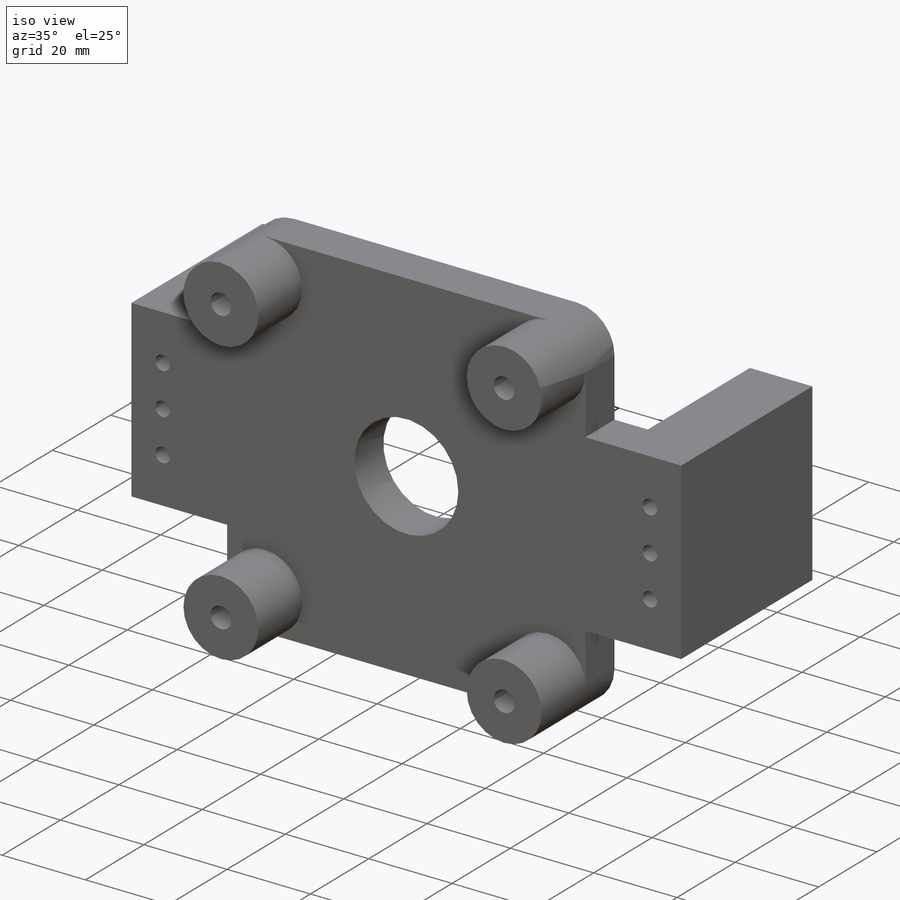
[diagram: iso view]
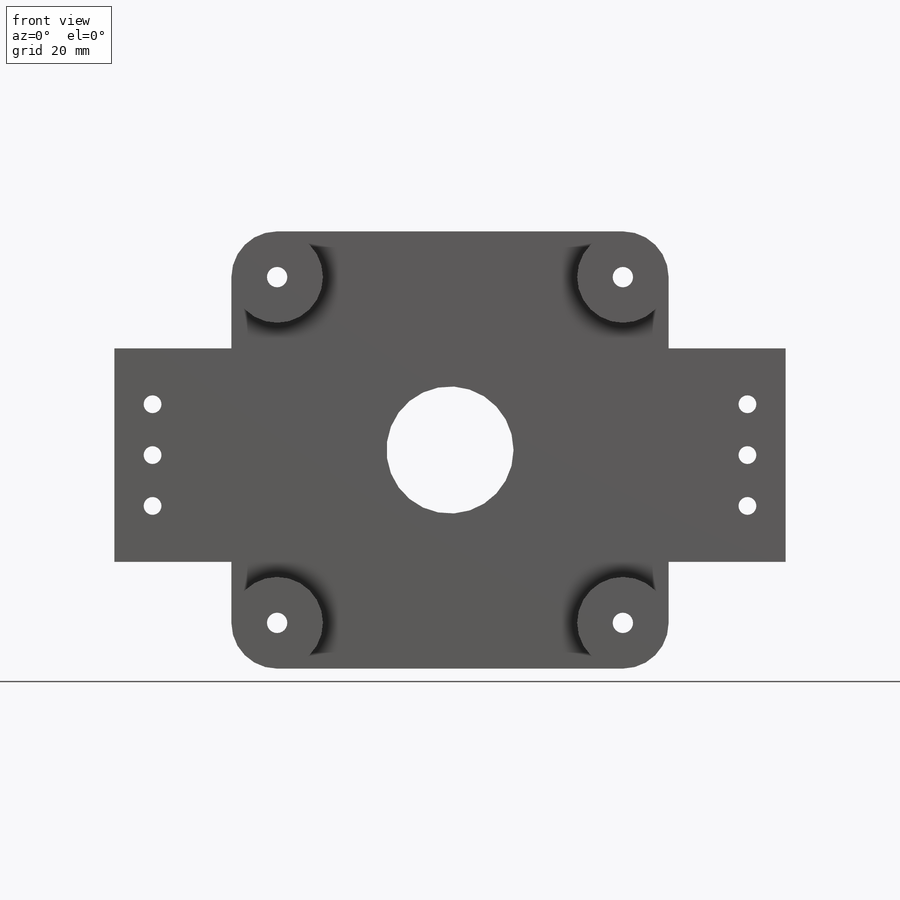
[diagram: front view]
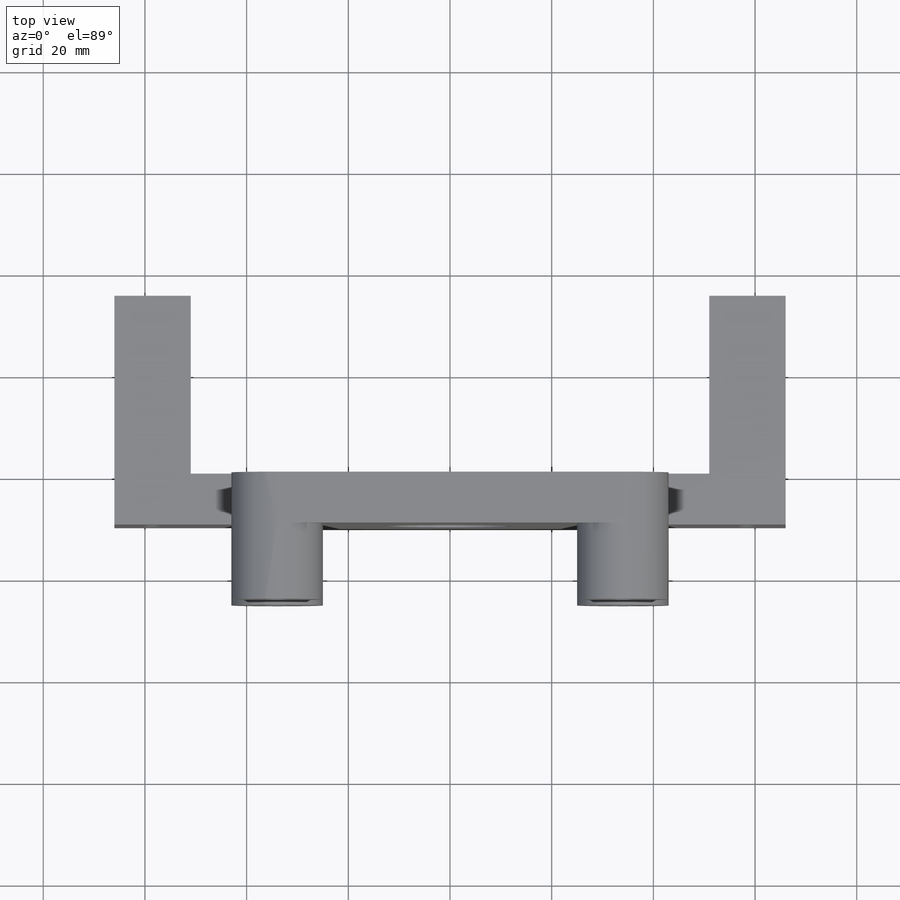
[diagram: top view]
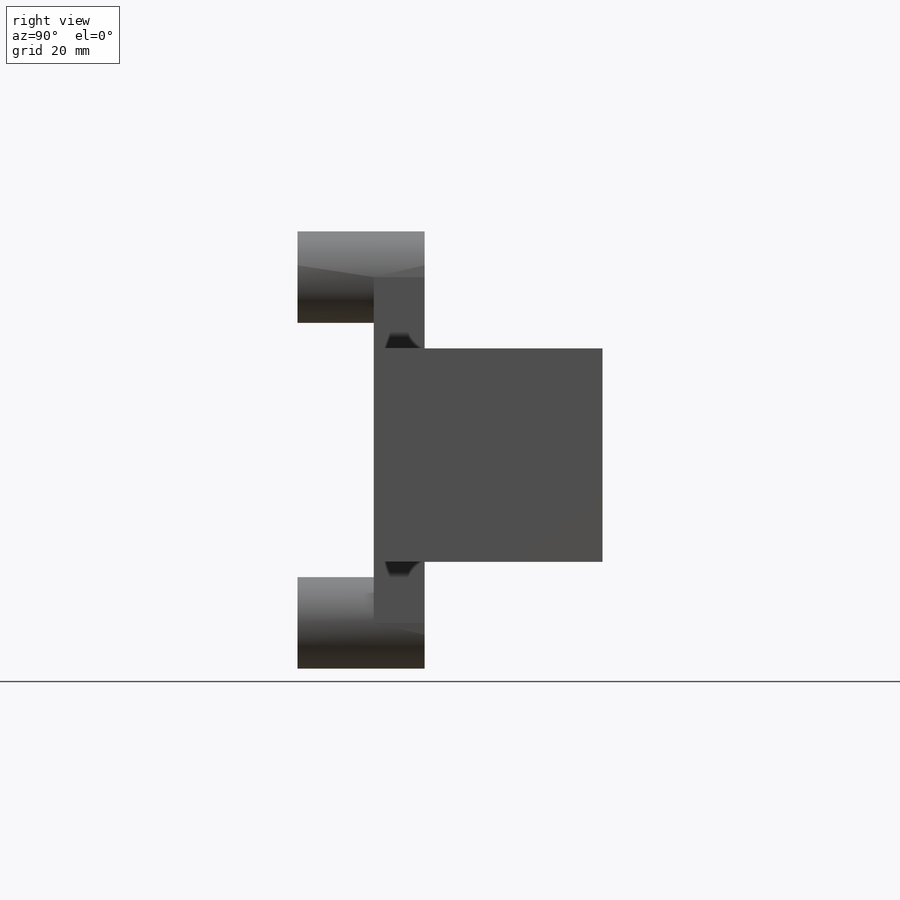
[diagram: right view]
SOLIDWORKS PART (.sldprt)
format: sldprt  version: not decoded by parser v0  size: 793,088 bytes
history: native  units: mm
features: sketch x12, extrude x9, plane x3, cut_extrude x3, material x1, fillet x1 (+10 scaffold rows collapsed)
feature tree (39):
  scaffold x10  (default folders/planes/origin — collapsed)
  material  "材质 <未指定>"
  plane  "前视基准面"
  plane  "上视基准面"
  plane  "右视基准面"
  sketch  "草图1"  dims[c1.D5=4.0mm c1.D6=4.0mm c1.D7=4.0mm c1.D8=4.0mm c1.D9=4.0mm c1.D10=4.0mm c1.D11=4.0mm c1.D12=4.0mm c1.D13=4.0mm c1.D14=4.0mm c1.D15=4.0mm c1.D16=4.0mm c1.D17=4.0mm c1.D1=86.0mm c1.D2=86.0mm c1.D3=43.0mm c1.D4=43.0mm c2.D9=68.0mm c2.D10=68.0mm c2.D11=68.0mm c2.D12=9.0mm c2.D13=9.0mm c2.D14=9.0mm c2.D15=68.0mm c2.D16=9.0mm c2.D17=9.0mm]
  extrude  "凸台-拉伸1"  Depth=10mm
  fillet  "圆角1"  Radius=5mm
  sketch  "草图2"  dims[D1=18.0mm D2=18.0mm D3=18.0mm D4=18.0mm D5=5.0mm D6=5.0mm D7=5.0mm D8=5.0mm]
  extrude  "凸台-拉伸2"  Depth=15mm
  sketch  "草图3"  dims[D1=25.0mm]
  cut_extrude  "切除-拉伸1"  Depth=16mm
  sketch  "草图5"  dims[c1.D1=43.0mm c1.D4=10.0mm c1.D2=0.5mm c1.D3=0.5mm c2.D2=36.0]
  extrude  "凸台-拉伸3"  Depth=1mm
  sketch  "草图6"  dims[c1.D2=40.0mm c2.D2=5.0deg c2.D4=5.0mm c3.D2=~4.970688mm c4.D2=~90.818455deg c4.D1=1.0mm c5.D2=0.5mm c5.D3=0.5mm c6.D2=36.0]
  extrude  "凸台-拉伸4"  Depth=1mm
  sketch  "草图7"  dims[c1.D1=40.0mm c2.D1=5.0deg c2.D2=40.0mm c3.D2=~0.716216deg c4.D2=~39.894113mm c5.D2=0.72deg c5.D3=40.0mm c6.D3=0.72deg c6.D4=5.0mm c6.D5=5.0mm c6.D1=36.0]
  extrude  "凸台-拉伸6"  Depth=1mm
  sketch  "草图8"  dims[c1.D1=10.0mm c1.D2=42.0mm c1.D3=20.0mm c1.D4=10.0mm c1.D5=42.0mm c1.D6=22.0mm c1.D7=~47.423623mm c2.D7=90.0deg c3.D7=56.0mm c3.D8=~60.166436mm c4.D7=56.0mm]
  extrude  "凸台-拉伸7"  Depth=35mm
  sketch  "草图9"
  extrude  "凸台-拉伸8"  Depth=10mm
  sketch  "草图10"
  cut_extrude  "切除-拉伸2"  Depth=10mm
  sketch  "草图11"
  extrude  "凸台-拉伸9"  Depth=5mm
  sketch  "草图12"
  extrude  "凸台-拉伸10"  Depth=5mm
  sketch  "草图13"  dims[c1.D1=3.5mm c1.D2=3.5mm c1.D3=3.5mm c1.D4=3.5mm c1.D5=3.5mm c1.D6=3.5mm c1.D7=3.5mm c2.D4=3.5mm c2.D7=3.5mm c2.D8=3.5mm c2.D9=3.5mm c3.D4=12.0mm c3.D5=10.0mm c3.D6=10.0mm c3.D7=6.0mm c4.D4=11.0mm c4.D7=7.5mm c4.D8=7.5mm c4.D9=7.5mm]
  cut_extrude  "切除-拉伸3"  Depth=45mm
decode coverage: 21 of 25 modeling features carry decoded parameters
note: ~ marks probable driven/reference dimensions
note: suppression state not decoded; provenance and decode notes live in map.json
